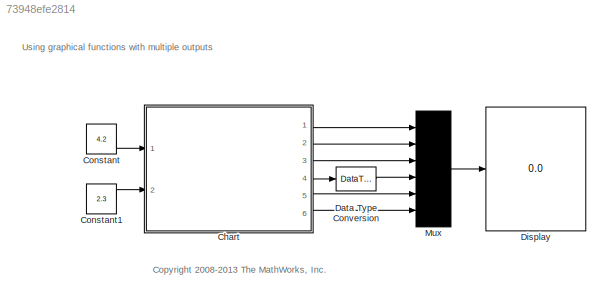
MODEL slx_73948efe2814
KIND model
CONFIG AbsTol = auto
CONFIG EnableMultiTasking = on
CONFIG FixedStep = 1
CONFIG MaxStep = auto
CONFIG MinStep = auto
CONFIG RelTol = 1e-3
CONFIG SampleTimeConstraint = Unconstrained
CONFIG Solver = FixedStepDiscrete
CONFIG SolverName = FixedStepDiscrete
CONFIG StartTime = 0.0
CONFIG StopTime = 10.0
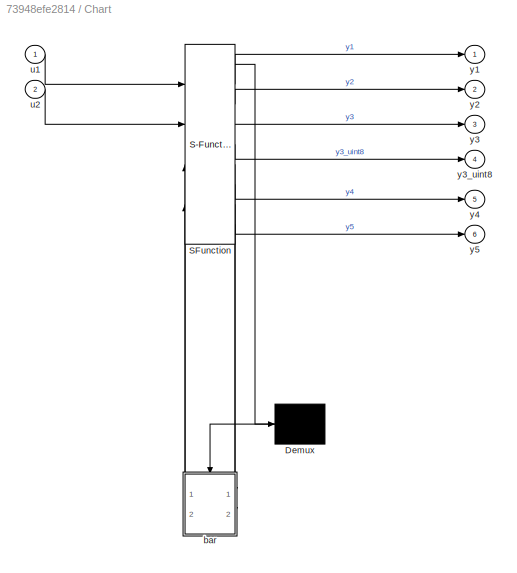
BLOCK [SubSystem] Chart
  ErrorFcn = Stateflow.Translate.translate
  PermitHierarchicalResolution = ExplicitOnly
  Ports = [2, 6]
  RequestExecContextInheritance = off
  SFBlockType = Chart
  TreatAsAtomicUnit = on
  Variant = off
BLOCK [Demux] Chart/ Demux 
  Outputs = 1
  Ports = [1, 1]
BLOCK [S-Function] Chart/ SFunction 
  EnableBusSupport = off
  FunctionName = sf_sfun
  PortCounts = [4 9]
  Ports = [4, 9]
  SFcnIsStateOwnerBlock = off
  SFunctionDeploymentMode = off
  Tag = Stateflow S-Function sf_multioutput 1
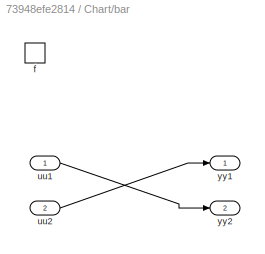
BLOCK [SubSystem] Chart/bar
  Ports = [2, 2, 0, 1]
  PreDeleteFcn = Stateflow.SLINSF.SimulinkMan.removePreDeleteFcn
  RequestExecContextInheritance = off
  UndoDeleteFcn = Stateflow.SLINSF.SimulinkMan.restorePreDeleteFcn
  Variant = off
BLOCK [TriggerPort] Chart/bar/f
  CopyFcn = Stateflow.SLINSF.SimulinkMan.removeBlockPreDeleteFcn
  Ports = []
  PreDeleteFcn = Stateflow.SLINSF.SimulinkMan.unsafePredeleteFcn
  TriggerType = function-call
  VariantControl = (inherit)
BLOCK [Inport] Chart/bar/uu1
  IconDisplay = Port number
BLOCK [Inport] Chart/bar/uu2
  IconDisplay = Port number
  Port = 2
BLOCK [Outport] Chart/bar/yy1
  IconDisplay = Port number
BLOCK [Outport] Chart/bar/yy2
  IconDisplay = Port number
  Port = 2
BLOCK [Inport] Chart/u1
  IconDisplay = Port number
BLOCK [Inport] Chart/u2
  IconDisplay = Port number
  Port = 2
BLOCK [Outport] Chart/y1
  IconDisplay = Port number
BLOCK [Outport] Chart/y2
  IconDisplay = Port number
  Port = 2
BLOCK [Outport] Chart/y3
  IconDisplay = Port number
  Port = 3
BLOCK [Outport] Chart/y3_uint8
  IconDisplay = Port number
  Port = 4
BLOCK [Outport] Chart/y4
  IconDisplay = Port number
  Port = 5
BLOCK [Outport] Chart/y5
  IconDisplay = Port number
  Port = 6
BLOCK [Constant] Constant
  Value = 4.2
BLOCK [Constant] Constant1
  Value = 2.3
BLOCK [DataTypeConversion] Data Type Conversion
  RndMeth = Floor
  SaturateOnIntegerOverflow = off
BLOCK [Display] Display
  Decimation = 1
  Ports = [1]
BLOCK [Mux] Mux
  DisplayOption = bar
  Inputs = 6
  Ports = [6, 1]
ANNOTATION (root): <copyright redacted>
ANNOTATION (root): Using graphical functions with multiple outputs
LINE Chart:1 -> Mux:1
LINE Chart:2 -> Mux:2
LINE Chart:3 -> Mux:3
LINE Chart:4 -> Data Type Conversion:1
LINE Chart:5 -> Mux:5
LINE Chart:6 -> Mux:6
LINE Constant1:1 -> Chart:2
LINE Constant:1 -> Chart:1
LINE Data Type Conversion:1 -> Mux:4
LINE Mux:1 -> Display:1
CHART Chart states=2 transitions=2
  STATE_LABEL '[yy1,yy2] = bar(uu1,uu2)'
  STATE_LABEL '[yy1,yy2] = foo(uu1,uu2)'
  STATE_LABEL '{yy1 = uu1 + uu2;\n yy2 = uu1 - uu2;}'
